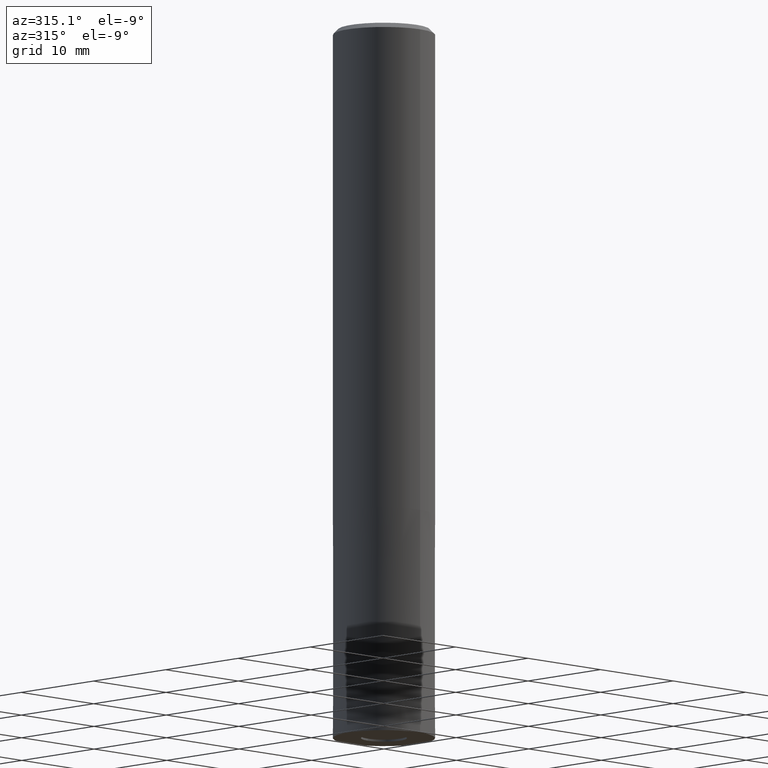
[diagram: clean part render]
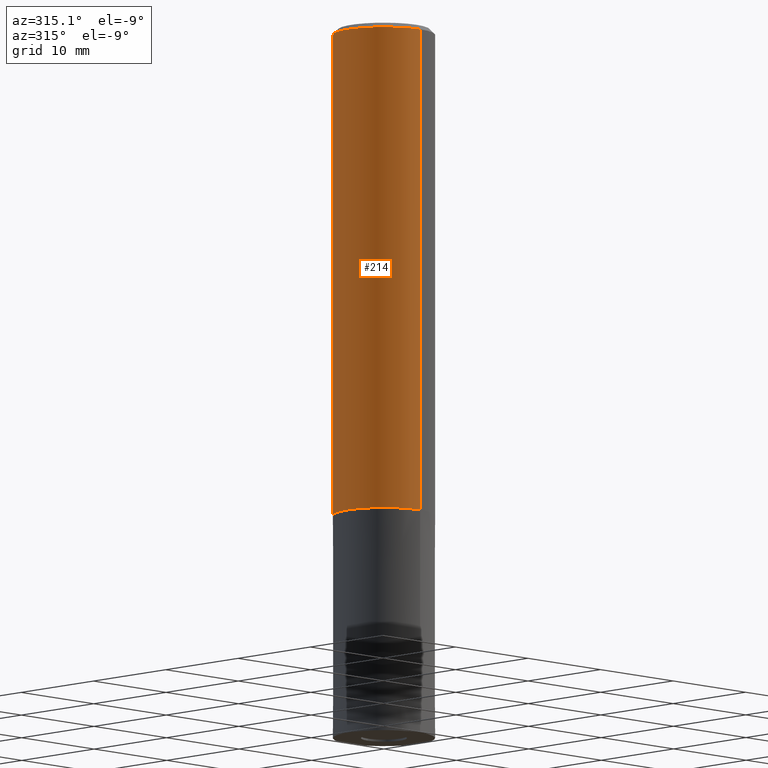
[diagram: same view with one face highlighted and labeled with its STEP entity id]
A machine part, auxiliary view. The second image highlights one B-rep face of the part: STEP entity #214.
In plain terms, the highlighted cylindrical surface (partial cylindrical patch) has radius 5 mm, axis along (-0, -0, 1).
Its self-contained STEP definition (entity closure, byte-faithful):
#100=EDGE_CURVE('',#172,#166,#245,.T.);
#138=EDGE_CURVE('',#146,#172,#290,.T.);
#146=VERTEX_POINT('',#300);
#148=VERTEX_POINT('',#302);
#166=VERTEX_POINT('',#325);
#172=VERTEX_POINT('',#332);
#182=EDGE_CURVE('',#166,#148,#344,.T.);
#204=EDGE_CURVE('',#146,#148,#366,.T.);
#214=ADVANCED_FACE('',(#376),#377,.T.);
#245=CIRCLE('',#400,5.0);
#290=LINE('',#459,#460);
#300=CARTESIAN_POINT('',(6.12303176911189E-016,-5.0,-48.0));
#302=CARTESIAN_POINT('',(0.0,5.0,-48.0));
#325=CARTESIAN_POINT('',(0.0,5.0,-0.5));
#332=CARTESIAN_POINT('',(6.12303176911189E-016,-5.0,-0.5));
#344=LINE('',#524,#525);
#366=CIRCLE('',#553,5.0);
#376=FACE_OUTER_BOUND('',#564,.T.);
#377=CYLINDRICAL_SURFACE('',#565,5.0);
#400=AXIS2_PLACEMENT_3D('',#577,#578,#579);
#459=CARTESIAN_POINT('',(6.12303176911189E-016,-5.0,-24.25));
#460=VECTOR('',#645,1.0);
#524=CARTESIAN_POINT('',(-6.12303176911189E-016,5.0,-24.25));
#525=VECTOR('',#725,1.0);
#553=AXIS2_PLACEMENT_3D('',#740,#741,#742);
#564=EDGE_LOOP('',(#747,#748,#749,#750));
#565=AXIS2_PLACEMENT_3D('',#751,#752,#753);
#577=CARTESIAN_POINT('',(0.0,0.0,-0.5));
#578=DIRECTION('',(0.0,0.0,-1.0));
#579=DIRECTION('',(0.0,1.0,0.0));
#645=DIRECTION('',(-0.0,-0.0,1.0));
#725=DIRECTION('',(0.0,0.0,-1.0));
#740=CARTESIAN_POINT('',(0.0,0.0,-48.0));
#741=DIRECTION('',(0.0,0.0,-1.0));
#742=DIRECTION('',(0.0,1.0,0.0));
#747=ORIENTED_EDGE('',*,*,#182,.T.);
#748=ORIENTED_EDGE('',*,*,#204,.F.);
#749=ORIENTED_EDGE('',*,*,#138,.T.);
#750=ORIENTED_EDGE('',*,*,#100,.T.);
#751=CARTESIAN_POINT('',(0.0,0.0,-24.25));
#752=DIRECTION('',(-0.0,-0.0,1.0));
#753=DIRECTION('',(0.0,1.0,0.0));